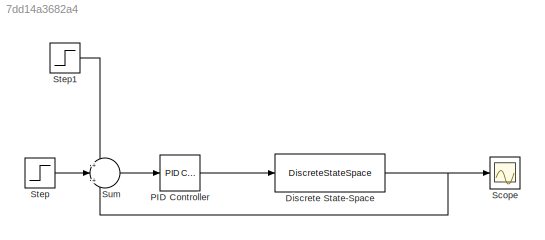
MODEL slx_7dd14a3682a4
KIND model
CONFIG AbsTol = auto
CONFIG EnableMultiTasking = off
CONFIG FixedStep = auto
CONFIG MaxStep = auto
CONFIG MinStep = auto
CONFIG RelTol = 1e-3
CONFIG SampleTimeConstraint = Unconstrained
CONFIG SolverName = VariableStepAuto
CONFIG StartTime = 0.0
CONFIG StopTime = 10.0
BLOCK [DiscreteStateSpace] Discrete State-Space
  A = [3.1839e-04,0.2636,-0.1133;-0.3112,-0.2021,9.7224;0.1144,-8.0931,-0.2541]
  B = [3.2286e-07;3.0629e-05;-2.5635e-05]
  C = [-9.1284e+03,67.7029,-32.1946]
  D = 0
  SampleTime = 0.01
BLOCK [Reference] PID Controller  REF=slpidlib/PID Controller
  LibrarySourceBlock = simulink/Continuous/PID Controller
  SourceBlock = slpidlib/PID Controller
  SourceType = PID 1dof
BLOCK [Scope] Scope
  Floating = off
  NumInputPorts = 1
  ScopeSpecificationString = Simulink.scopes.TimeScopeBlockCfg('CurrentConfiguration', extmgr.ConfigurationSet(extmgr.Configuration('Core','General UI',true),extmgr.Configuration('Core','Source UI',true),extmgr.Configuration('Sources','WiredSimulink',true),extmgr.Configuration('Visuals','Time Domain',true,'SerializedDisplays',{struct('MinYLimReal','-0.25','MaxYLimReal','2.25','YLabelReal','','MinYLimMag','0.00000','MaxYLimMag...<+1411ch>
BLOCK [Step] Step
  Before = 1
  SampleTime = 0
BLOCK [Step] Step1
  SampleTime = 5
BLOCK [Sum] Sum
  Inputs = +|+|-
NET Discrete State-Space:1 -> Scope:1, Sum:3
LINE PID Controller:1 -> Discrete State-Space:1
LINE Step1:1 -> Sum:1
LINE Step:1 -> Sum:2
LINE Sum:1 -> PID Controller:1
note: NET lines group one-source signal fan-out (src -> all destinations, sorted); 1:1 wires keep LINE
